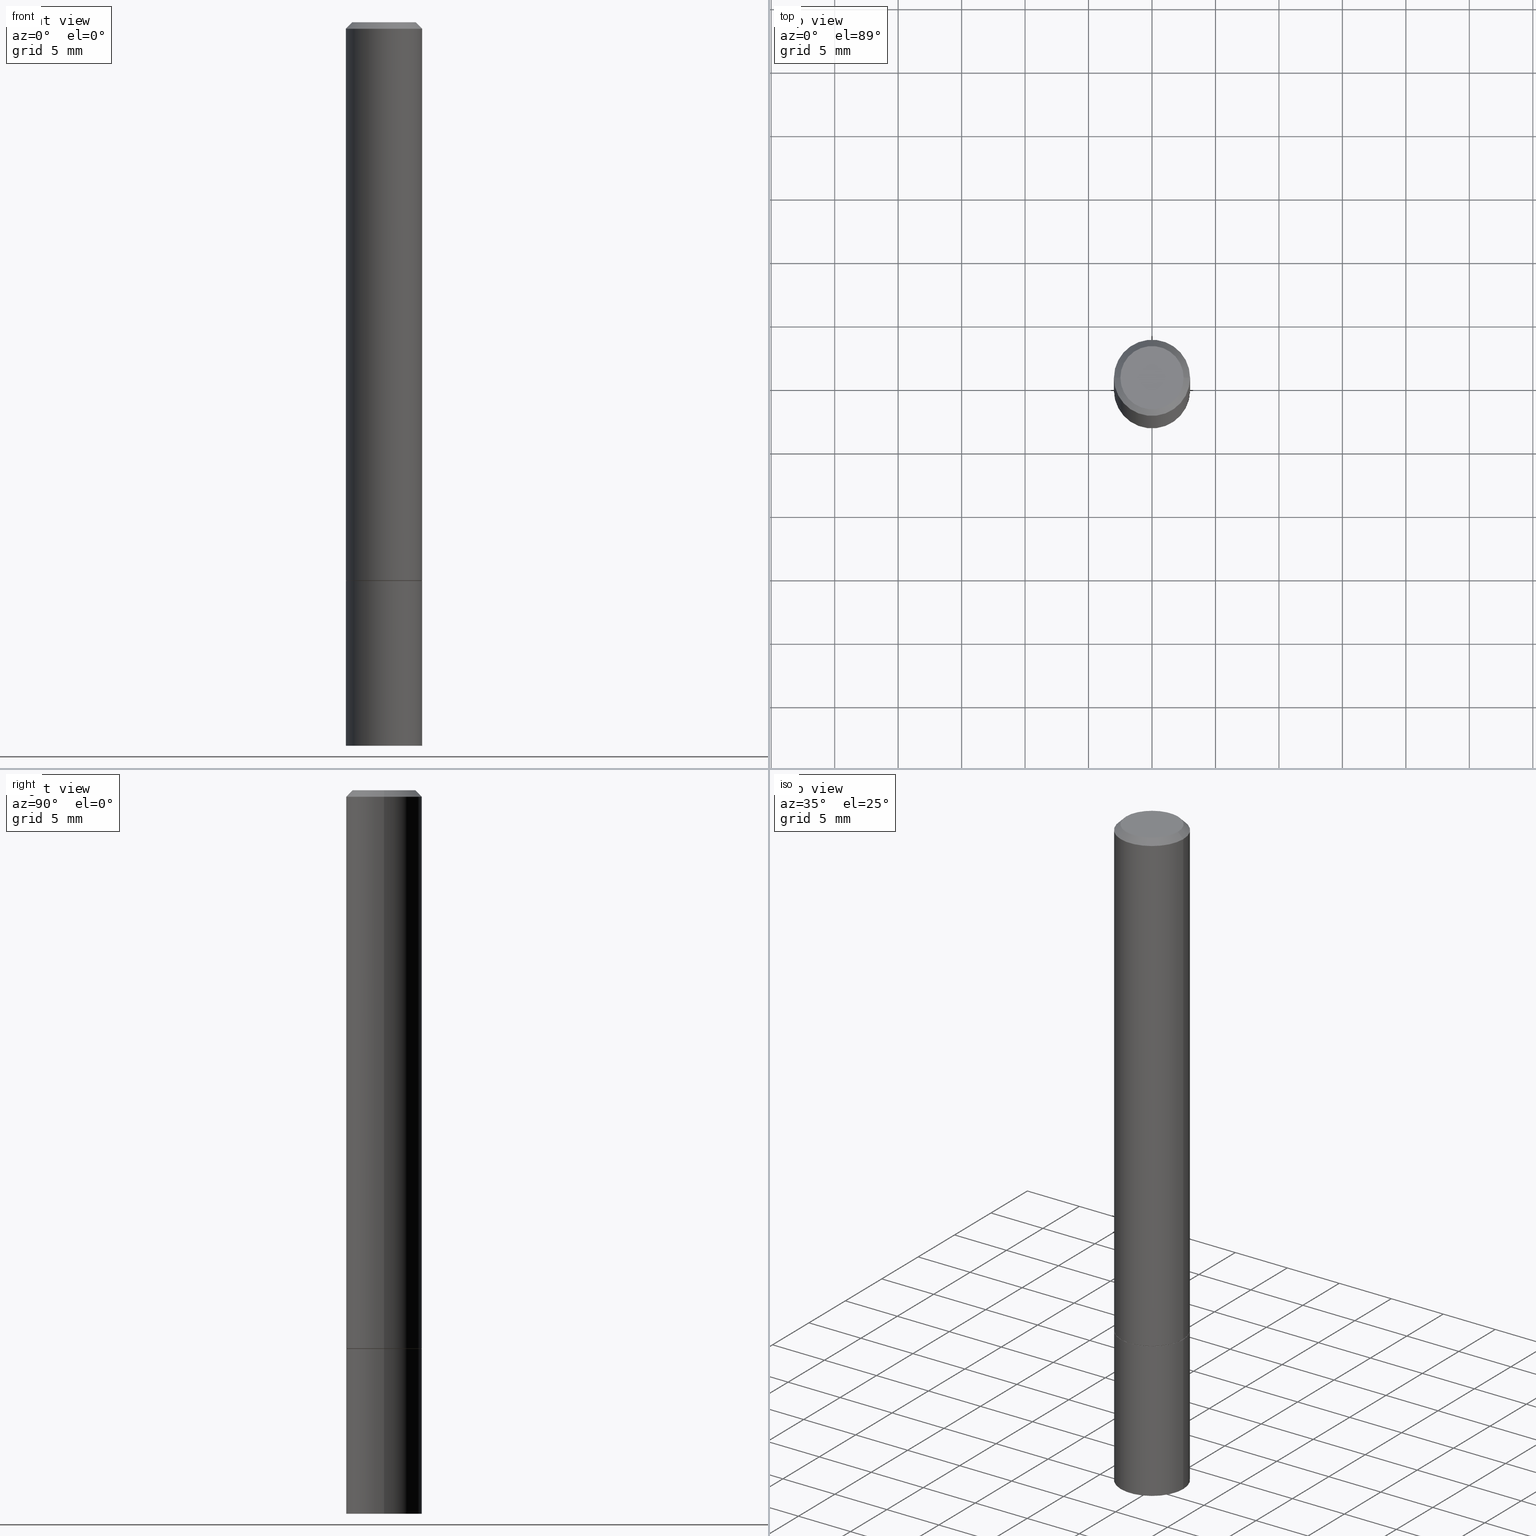
[diagram: canonical four-view strip — front | top / right | iso, engineering-drawing reading convention]
A machine part, canonical four-view strip (front | top / right | iso — engineering-drawing reading convention). The complete STEP part file that produces these views, byte-faithful:
ISO-10303-21;
HEADER;
FILE_DESCRIPTION (( 'STEP AP203' ),
    '1' );
FILE_NAME ('44701.STEP',
    '2024-02-28T07:26:41',
    ( '' ),
    ( '' ),
    'SwSTEP 2.0',
    'SolidWorks 2023',
    '' );
FILE_SCHEMA (( 'CONFIG_CONTROL_DESIGN' ));
ENDSEC;

DATA;
#1 = CARTESIAN_POINT ( 'NONE',  ( 4.890937612370292426E-31, -6.982962677686317493E-17, -0.02000000000000007674 ) ) ;
#2 = CYLINDRICAL_SURFACE ( 'NONE', #16, 0.1180999999999999273 ) ;
#3 = CARTESIAN_POINT ( 'NONE',  ( 0.1181000000000000383, -8.659921164732650602E-15, -2.244099999999999984 ) ) ;
#4 = ADVANCED_FACE ( 'NONE', ( #225 ), #279, .F. ) ;
#5 = AXIS2_PLACEMENT_3D ( 'NONE', #308, #343, #342 ) ;
#6 = APPROVAL_PERSON_ORGANIZATION ( #243, #285, #50 ) ;
#7 = DIRECTION ( 'NONE',  ( 1.000000000000000000, -6.982962677686270655E-15, 0.000000000000000000 ) ) ;
#8 =( NAMED_UNIT ( * ) SI_UNIT ( $, .STERADIAN. ) SOLID_ANGLE_UNIT ( ) );
#9 = CARTESIAN_POINT ( 'NONE',  ( 0.1180999999999999273, -8.246878922347475723E-16, 5.758764772214996937E-30 ) ) ;
#10 = CARTESIAN_POINT ( 'NONE',  ( 0.1171000000000000235, -6.865998052835044115E-15, -1.732299999999999951 ) ) ;
#11 = COORDINATED_UNIVERSAL_TIME_OFFSET ( 5, 0, .BEHIND. ) ;
#12 = EDGE_LOOP ( 'NONE', ( #78, #115 ) ) ;
#13 = EDGE_CURVE ( 'NONE', #346, #133, #340, .T. ) ;
#14 = DIRECTION ( 'NONE',  ( -2.445468806185136597E-29, 3.491481338843145583E-15, 1.000000000000000000 ) ) ;
#15 = PERSON_AND_ORGANIZATION_ROLE ( 'creator' ) ;
#16 = AXIS2_PLACEMENT_3D ( 'NONE', #260, #130, #252 ) ;
#17 = EDGE_LOOP ( 'NONE', ( #54, #81, #291, #108 ) ) ;
#18 = DIRECTION ( 'NONE',  ( 0.7071067811865232589, -2.468850131082003836E-15, 0.7071067811865715536 ) ) ;
#19 = ORIENTED_EDGE ( 'NONE', *, *, #189, .F. ) ;
#20 = PERSON_AND_ORGANIZATION_ROLE ( 'classification_officer' ) ;
#21 = DIRECTION ( 'NONE',  ( 0.7071067811865469066, -7.319954787623254468E-15, -0.7071067811865482389 ) ) ;
#22 = LOCAL_TIME ( 2, 26, 41.00000000000000000, #11 ) ;
#23 = CARTESIAN_POINT ( 'NONE',  ( 5.487876547960064752E-29, -7.835233272497902340E-15, -2.244099999999999984 ) ) ;
#24 = ORIENTED_EDGE ( 'NONE', *, *, #229, .T. ) ;
#25 = ORIENTED_EDGE ( 'NONE', *, *, #41, .T. ) ;
#26 = DIRECTION ( 'NONE',  ( 1.000000000000000000, -6.982962677686266711E-15, 0.000000000000000000 ) ) ;
#27 = ADVANCED_FACE ( 'NONE', ( #167 ), #45, .T. ) ;
#28 = AXIS2_PLACEMENT_3D ( 'NONE', #212, #216, #83 ) ;
#29 = EDGE_CURVE ( 'NONE', #293, #111, #241, .T. ) ;
#30 = CARTESIAN_POINT ( 'NONE',  ( 4.236285612954512392E-29, -6.048293123277981078E-15, -1.732299999999999951 ) ) ;
#31 = DIRECTION ( 'NONE',  ( -2.445468806185136597E-29, 3.491481338843145583E-15, 1.000000000000000000 ) ) ;
#32 = DIMENSIONAL_EXPONENTS ( 1.000000000000000000, 0.000000000000000000, 0.000000000000000000, 0.000000000000000000, 0.000000000000000000, 0.000000000000000000, 0.000000000000000000 ) ;
#33 = ORIENTED_EDGE ( 'NONE', *, *, #84, .F. ) ;
#34 = CC_DESIGN_PERSON_AND_ORGANIZATION_ASSIGNMENT ( #47, #74, ( #211 ) ) ;
#35 = ORIENTED_EDGE ( 'NONE', *, *, #113, .T. ) ;
#36 = APPROVAL_STATUS ( 'not_yet_approved' ) ;
#37 = ORIENTED_EDGE ( 'NONE', *, *, #249, .F. ) ;
#38 = CARTESIAN_POINT ( 'NONE',  ( 0.1181000000000000383, -8.246878922347483612E-16, 5.758764772215001842E-30 ) ) ;
#39 = LINE ( 'NONE', #10, #287 ) ;
#40 = DATE_TIME_ROLE ( 'creation_date' ) ;
#41 = EDGE_CURVE ( 'NONE', #174, #236, #200, .T. ) ;
#42 = ORIENTED_EDGE ( 'NONE', *, *, #223, .F. ) ;
#43 = DIRECTION ( 'NONE',  ( 2.438088387897960049E-29, -3.491481338843145188E-15, -1.000000000000000000 ) ) ;
#44 = PERSON_AND_ORGANIZATION ( #53, #298 ) ;
#45 = CONICAL_SURFACE ( 'NONE', #134, 0.1171000000000000235, 0.7853981633974141952 ) ;
#46 = DIRECTION ( 'NONE',  ( -2.445468806185136597E-29, 3.491481338843145583E-15, 1.000000000000000000 ) ) ;
#47 = PERSON_AND_ORGANIZATION ( #53, #298 ) ;
#48 = VERTEX_POINT ( 'NONE', #317 ) ;
#49 = DIRECTION ( 'NONE',  ( -2.445468806185136877E-29, 3.491481338843145188E-15, 1.000000000000000000 ) ) ;
#50 = APPROVAL_ROLE ( '' ) ;
#51 = AXIS2_PLACEMENT_3D ( 'NONE', #172, #43, #147 ) ;
#52 = DIRECTION ( 'NONE',  ( 1.000000000000000000, -6.982962677686266711E-15, 0.000000000000000000 ) ) ;
#53 = PERSON ( 'UNSPECIFIED', 'UNSPECIFIED', 'UNSPECIFIED', ('UNSPECIFIED'), ('UNSPECIFIED'), ('UNSPECIFIED') ) ;
#54 = ORIENTED_EDGE ( 'NONE', *, *, #150, .T. ) ;
#55 = EDGE_CURVE ( 'NONE', #346, #181, #207, .T. ) ;
#56 = DIRECTION ( 'NONE',  ( -2.445468806185136877E-29, 3.491481338843145188E-15, 1.000000000000000000 ) ) ;
#57 = CYLINDRICAL_SURFACE ( 'NONE', #122, 0.1181000000000000383 ) ;
#58 = AXIS2_PLACEMENT_3D ( 'NONE', #86, #195, #62 ) ;
#59 = EDGE_CURVE ( 'NONE', #347, #96, #137, .T. ) ;
#60 = CARTESIAN_POINT ( 'NONE',  ( 4.890937612370292426E-31, -6.982962677686317493E-17, -0.02000000000000007674 ) ) ;
#61 = DIRECTION ( 'NONE',  ( -1.000000000000000000, 6.982962677686266711E-15, 0.000000000000000000 ) ) ;
#62 = DIRECTION ( 'NONE',  ( 1.000000000000000000, -6.982962677686270655E-15, 0.000000000000000000 ) ) ;
#63 = DIRECTION ( 'NONE',  ( 1.000000000000000000, -6.982962677686266711E-15, 4.877161320636775200E-29 ) ) ;
#64 = AXIS2_PLACEMENT_3D ( 'NONE', #107, #269, #245 ) ;
#65 = CARTESIAN_POINT ( 'NONE',  ( 0.1180999999999998301, -8.800544403136798514E-16, -0.02000000000000007674 ) ) ;
#66 = ADVANCED_FACE ( 'NONE', ( #93 ), #276, .T. ) ;
#67 = ORIENTED_EDGE ( 'NONE', *, *, #59, .T. ) ;
#68 = AXIS2_PLACEMENT_3D ( 'NONE', #259, #296, #348 ) ;
#69 = AXIS2_PLACEMENT_3D ( 'NONE', #1, #267, #26 ) ;
#70 = CALENDAR_DATE ( 2024, 28, 2 ) ;
#71 = DIRECTION ( 'NONE',  ( -2.445468806185136597E-29, 3.491481338843145583E-15, 1.000000000000000000 ) ) ;
#72 =( CONVERSION_BASED_UNIT ( 'INCH', #282 ) LENGTH_UNIT ( ) NAMED_UNIT ( #32 ) );
#73 = VERTEX_POINT ( 'NONE', #235 ) ;
#74 = PERSON_AND_ORGANIZATION_ROLE ( 'creator' ) ;
#75 = ORIENTED_EDGE ( 'NONE', *, *, #180, .T. ) ;
#76 = CARTESIAN_POINT ( 'NONE',  ( 0.000000000000000000, 0.000000000000000000, 0.000000000000000000 ) ) ;
#77 = CARTESIAN_POINT ( 'NONE',  ( -0.1181000000000000383, -2.218164663425319332E-15, -1.731299999999999839 ) ) ;
#78 = ORIENTED_EDGE ( 'NONE', *, *, #150, .F. ) ;
#79 = COORDINATED_UNIVERSAL_TIME_OFFSET ( 5, 0, .BEHIND. ) ;
#80 = AXIS2_PLACEMENT_3D ( 'NONE', #191, #110, #222 ) ;
#81 = ORIENTED_EDGE ( 'NONE', *, *, #302, .T. ) ;
#82 = ORIENTED_EDGE ( 'NONE', *, *, #189, .T. ) ;
#83 = DIRECTION ( 'NONE',  ( 1.000000000000000000, -6.982962677686266711E-15, 4.876176775795935793E-29 ) ) ;
#84 = EDGE_CURVE ( 'NONE', #48, #181, #202, .T. ) ;
#85 = MANIFOLD_SOLID_BREP ( 'Body-Move/Copy2[2]', #224 ) ;
#86 = CARTESIAN_POINT ( 'NONE',  ( 5.487876547960064752E-29, -7.835233272497902340E-15, -2.244099999999999984 ) ) ;
#87 = CIRCLE ( 'NONE', #80, 0.1181000000000000383 ) ;
#88 = ADVANCED_FACE ( 'NONE', ( #292 ), #210, .T. ) ;
#89 = AXIS2_PLACEMENT_3D ( 'NONE', #307, #31, #63 ) ;
#90 = APPLICATION_CONTEXT ( 'configuration controlled 3d designs of mechanical parts and assemblies' ) ;
#91 = PERSON_AND_ORGANIZATION ( #53, #298 ) ;
#92 = DESIGN_CONTEXT ( 'detailed design', #360, 'design' ) ;
#93 = FACE_OUTER_BOUND ( 'NONE', #17, .T. ) ;
#94 = AXIS2_PLACEMENT_3D ( 'NONE', #23, #303, #131 ) ;
#95 = CALENDAR_DATE ( 2024, 28, 2 ) ;
#96 = VERTEX_POINT ( 'NONE', #295 ) ;
#97 = APPROVAL_STATUS ( 'not_yet_approved' ) ;
#98 = DIRECTION ( 'NONE',  ( -1.000000000000000000, 6.982962677686266711E-15, 0.000000000000000000 ) ) ;
#99 = APPROVAL ( #36, 'UNSPECIFIED' ) ;
#100 = AXIS2_PLACEMENT_3D ( 'NONE', #121, #71, #141 ) ;
#101 = EDGE_LOOP ( 'NONE', ( #82, #331 ) ) ;
#102 = CARTESIAN_POINT ( 'NONE',  ( 0.000000000000000000, 0.000000000000000000, 0.000000000000000000 ) ) ;
#103 = CARTESIAN_POINT ( 'NONE',  ( -0.1180999999999998301, 7.548582654578836825E-16, -0.02000000000000007674 ) ) ;
#104 = PLANE ( 'NONE',  #153 ) ;
#105 = APPROVAL_DATE_TIME ( #186, #285 ) ;
#106 = LOCAL_TIME ( 2, 26, 41.00000000000000000, #148 ) ;
#107 = CARTESIAN_POINT ( 'NONE',  ( 4.236285612954512392E-29, -6.048293123277981078E-15, -1.732299999999999951 ) ) ;
#108 = ORIENTED_EDGE ( 'NONE', *, *, #113, .F. ) ;
#109 = VECTOR ( 'NONE', #337, 39.37007874015748854 ) ;
#110 = DIRECTION ( 'NONE',  ( -2.445468806185136597E-29, 3.491481338843145583E-15, 1.000000000000000000 ) ) ;
#111 = VERTEX_POINT ( 'NONE', #116 ) ;
#112 =( LENGTH_UNIT ( ) NAMED_UNIT ( * ) SI_UNIT ( $, .METRE. ) );
#113 = EDGE_CURVE ( 'NONE', #96, #111, #39, .T. ) ;
#114 = APPROVAL_DATE_TIME ( #315, #99 ) ;
#115 = ORIENTED_EDGE ( 'NONE', *, *, #59, .F. ) ;
#116 = CARTESIAN_POINT ( 'NONE',  ( 0.1181000000000000383, -6.869489534173886334E-15, -1.731299999999999839 ) ) ;
#117 = CARTESIAN_POINT ( 'NONE',  ( -0.09809999999999984011, 7.199434520694526251E-16, -4.695363739110943904E-17 ) ) ;
#118 = DATE_AND_TIME ( #353, #22 ) ;
#119 = ORIENTED_EDGE ( 'NONE', *, *, #13, .T. ) ;
#120 = ADVANCED_BREP_SHAPE_REPRESENTATION ( '44701', ( #336, #85, #270 ), #351 ) ;
#121 = CARTESIAN_POINT ( 'NONE',  ( 4.236285612954512392E-29, -6.048293123277981078E-15, -1.732299999999999951 ) ) ;
#122 = AXIS2_PLACEMENT_3D ( 'NONE', #102, #332, #124 ) ;
#123 = DATE_AND_TIME ( #95, #127 ) ;
#124 = DIRECTION ( 'NONE',  ( 1.000000000000000000, -6.982962677686266711E-15, 4.876176775795935793E-29 ) ) ;
#125 = AXIS2_PLACEMENT_3D ( 'NONE', #264, #355, #98 ) ;
#126 = CALENDAR_DATE ( 2024, 28, 2 ) ;
#127 = LOCAL_TIME ( 2, 26, 41.00000000000000000, #290 ) ;
#128 = ORIENTED_EDGE ( 'NONE', *, *, #249, .T. ) ;
#129 = FACE_OUTER_BOUND ( 'NONE', #274, .T. ) ;
#130 = DIRECTION ( 'NONE',  ( -2.445468806185136597E-29, 3.491481338843145583E-15, 1.000000000000000000 ) ) ;
#131 = DIRECTION ( 'NONE',  ( 1.000000000000000000, -6.982962677686270655E-15, 0.000000000000000000 ) ) ;
#132 = LINE ( 'NONE', #248, #312 ) ;
#133 = VERTEX_POINT ( 'NONE', #327 ) ;
#134 = AXIS2_PLACEMENT_3D ( 'NONE', #30, #251, #7 ) ;
#135 = ORIENTED_EDGE ( 'NONE', *, *, #55, .F. ) ;
#136 = CC_DESIGN_DATE_AND_TIME_ASSIGNMENT ( #155, #263, ( #152 ) ) ;
#137 = CIRCLE ( 'NONE', #68, 0.1171000000000000235 ) ;
#138 = ORIENTED_EDGE ( 'NONE', *, *, #366, .F. ) ;
#139 = ADVANCED_FACE ( 'NONE', ( #238 ), #209, .F. ) ;
#140 = CC_DESIGN_APPROVAL ( #163, ( #211 ) ) ;
#141 = DIRECTION ( 'NONE',  ( 1.000000000000000000, -6.982962677686270655E-15, 0.000000000000000000 ) ) ;
#142 = MECHANICAL_CONTEXT ( 'NONE', #90, 'mechanical' ) ;
#143 = ORIENTED_EDGE ( 'NONE', *, *, #366, .T. ) ;
#144 = DIRECTION ( 'NONE',  ( -2.445468806185136877E-29, 3.491481338843145188E-15, 1.000000000000000000 ) ) ;
#145 = APPROVAL_ROLE ( '' ) ;
#146 = CARTESIAN_POINT ( 'NONE',  ( -0.1180999999999998301, 7.548582654578836825E-16, -0.02000000000000007674 ) ) ;
#147 = DIRECTION ( 'NONE',  ( -1.000000000000000000, 6.982962677686265922E-15, -4.876176775795935793E-29 ) ) ;
#148 = COORDINATED_UNIVERSAL_TIME_OFFSET ( 5, 0, .BEHIND. ) ;
#149 = DIRECTION ( 'NONE',  ( 1.000000000000000000, -6.982962677686270655E-15, 0.000000000000000000 ) ) ;
#150 = EDGE_CURVE ( 'NONE', #96, #347, #334, .T. ) ;
#151 = AXIS2_PLACEMENT_3D ( 'NONE', #354, #46, #154 ) ;
#152 = SECURITY_CLASSIFICATION ( '', '', #361 ) ;
#153 = AXIS2_PLACEMENT_3D ( 'NONE', #190, #161, #273 ) ;
#154 = DIRECTION ( 'NONE',  ( 1.000000000000000000, -6.982962677686262766E-15, 0.000000000000000000 ) ) ;
#155 = DATE_AND_TIME ( #126, #335 ) ;
#156 = ORIENTED_EDGE ( 'NONE', *, *, #169, .T. ) ;
#157 = CALENDAR_DATE ( 2024, 28, 2 ) ;
#158 = ORIENTED_EDGE ( 'NONE', *, *, #55, .T. ) ;
#159 = LINE ( 'NONE', #218, #109 ) ;
#160 = CIRCLE ( 'NONE', #89, 0.09809999999999984011 ) ;
#161 = DIRECTION ( 'NONE',  ( 2.438088387897960049E-29, -3.491481338843145188E-15, -1.000000000000000000 ) ) ;
#162 = EDGE_LOOP ( 'NONE', ( #119, #168, #19, #135 ) ) ;
#163 = APPROVAL ( #97, 'UNSPECIFIED' ) ;
#164 = VECTOR ( 'NONE', #175, 39.37007874015748143 ) ;
#165 = VECTOR ( 'NONE', #49, 39.37007874015748143 ) ;
#166 = ADVANCED_FACE ( 'NONE', ( #256 ), #233, .T. ) ;
#167 = FACE_OUTER_BOUND ( 'NONE', #266, .T. ) ;
#168 = ORIENTED_EDGE ( 'NONE', *, *, #223, .T. ) ;
#169 = EDGE_CURVE ( 'NONE', #174, #73, #250, .T. ) ;
#170 = CARTESIAN_POINT ( 'NONE',  ( 4.236285612954512392E-29, -6.048293123277981078E-15, -1.732299999999999951 ) ) ;
#171 = PERSON_AND_ORGANIZATION ( #53, #298 ) ;
#172 = CARTESIAN_POINT ( 'NONE',  ( 8.246878922348030884E-16, 0.1180999999999921973, -2.244100000000000428 ) ) ;
#173 = ADVANCED_FACE ( 'NONE', ( #247 ), #2, .T. ) ;
#174 = VERTEX_POINT ( 'NONE', #117 ) ;
#175 = DIRECTION ( 'NONE',  ( -0.7071067811865469066, 2.468850131082249961E-15, -0.7071067811865482389 ) ) ;
#176 = EDGE_LOOP ( 'NONE', ( #227, #322, #25, #75 ) ) ;
#177 = VECTOR ( 'NONE', #144, 39.37007874015748143 ) ;
#178 = VECTOR ( 'NONE', #21, 39.37007874015748143 ) ;
#179 = DIRECTION ( 'NONE',  ( 1.000000000000000000, -6.982962677686266711E-15, 4.876176775795935793E-29 ) ) ;
#180 = EDGE_CURVE ( 'NONE', #236, #350, #185, .T. ) ;
#181 = VERTEX_POINT ( 'NONE', #275 ) ;
#182 = DIRECTION ( 'NONE',  ( -2.445468806185136597E-29, 3.491481338843145583E-15, 1.000000000000000000 ) ) ;
#183 = CARTESIAN_POINT ( 'NONE',  ( -0.1181000000000000383, 8.391509709326785915E-16, -5.809262341591045886E-30 ) ) ;
#184 = CYLINDRICAL_SURFACE ( 'NONE', #28, 0.1181000000000000383 ) ;
#185 = CIRCLE ( 'NONE', #197, 0.1180999999999998301 ) ;
#186 = DATE_AND_TIME ( #157, #344 ) ;
#187 = CONICAL_SURFACE ( 'NONE', #277, 0.1180999999999998301, 0.7853981633974473908 ) ;
#188 = ORIENTED_EDGE ( 'NONE', *, *, #310, .F. ) ;
#189 = EDGE_CURVE ( 'NONE', #181, #48, #217, .T. ) ;
#190 = CARTESIAN_POINT ( 'NONE',  ( 8.246878922347905653E-16, 0.1180999999999939876, -1.732300000000000617 ) ) ;
#191 = CARTESIAN_POINT ( 'NONE',  ( 4.233840144148326789E-29, -6.044801641939137282E-15, -1.731299999999999839 ) ) ;
#192 = AXIS2_PLACEMENT_3D ( 'NONE', #261, #14, #323 ) ;
#193 = DIRECTION ( 'NONE',  ( 2.445468806185136597E-29, -3.491481338843145583E-15, -1.000000000000000000 ) ) ;
#194 = CC_DESIGN_PERSON_AND_ORGANIZATION_ASSIGNMENT ( #299, #20, ( #152 ) ) ;
#195 = DIRECTION ( 'NONE',  ( -2.445468806185136597E-29, 3.491481338843145583E-15, 1.000000000000000000 ) ) ;
#196 = CARTESIAN_POINT ( 'NONE',  ( 4.233840144148326789E-29, -6.044801641939137282E-15, -1.731299999999999839 ) ) ;
#197 = AXIS2_PLACEMENT_3D ( 'NONE', #60, #314, #52 ) ;
#198 = APPROVAL_ROLE ( '' ) ;
#199 = EDGE_LOOP ( 'NONE', ( #156, #201 ) ) ;
#200 = LINE ( 'NONE', #146, #164 ) ;
#201 = ORIENTED_EDGE ( 'NONE', *, *, #310, .T. ) ;
#202 = CIRCLE ( 'NONE', #151, 0.1181000000000000383 ) ;
#203 = AXIS2_PLACEMENT_3D ( 'NONE', #76, #182, #179 ) ;
#204 = DIRECTION ( 'NONE',  ( -2.438088387897960049E-29, 3.491481338843145188E-15, 1.000000000000000000 ) ) ;
#205 =( NAMED_UNIT ( * ) PLANE_ANGLE_UNIT ( ) SI_UNIT ( $, .RADIAN. ) );
#206 = DIRECTION ( 'NONE',  ( 1.000000000000000000, 0.000000000000000000, 0.000000000000000000 ) ) ;
#207 = LINE ( 'NONE', #38, #177 ) ;
#208 = CARTESIAN_POINT ( 'NONE',  ( 0.1180999999999998301, -8.800544403136798514E-16, -0.02000000000000007674 ) ) ;
#209 = PLANE ( 'NONE',  #254 ) ;
#210 = CONICAL_SURFACE ( 'NONE', #125, 0.1180999999999998301, 0.7853981633974473908 ) ;
#211 = PRODUCT_DEFINITION_FORMATION_WITH_SPECIFIED_SOURCE ( 'ANY', '', #237, .NOT_KNOWN. ) ;
#212 = CARTESIAN_POINT ( 'NONE',  ( 0.000000000000000000, 0.000000000000000000, 0.000000000000000000 ) ) ;
#213 = PERSON_AND_ORGANIZATION_ROLE ( 'design_supplier' ) ;
#214 = ORIENTED_EDGE ( 'NONE', *, *, #29, .T. ) ;
#215 = APPROVAL_STATUS ( 'not_yet_approved' ) ;
#216 = DIRECTION ( 'NONE',  ( -2.445468806185136597E-29, 3.491481338843145583E-15, 1.000000000000000000 ) ) ;
#217 = CIRCLE ( 'NONE', #64, 0.1181000000000000383 ) ;
#218 = CARTESIAN_POINT ( 'NONE',  ( -0.1171000000000000235, -5.216247579702903100E-15, -1.732299999999999951 ) ) ;
#219 = ADVANCED_FACE ( 'NONE', ( #363 ), #184, .T. ) ;
#220 = CARTESIAN_POINT ( 'NONE',  ( -0.1171000000000000235, -5.210949125354681487E-15, -1.732299999999999951 ) ) ;
#221 = CIRCLE ( 'NONE', #94, 0.1181000000000000383 ) ;
#222 = DIRECTION ( 'NONE',  ( 1.000000000000000000, -6.982962677686270655E-15, 0.000000000000000000 ) ) ;
#223 = EDGE_CURVE ( 'NONE', #133, #48, #329, .T. ) ;
#224 = CLOSED_SHELL ( 'NONE', ( #66, #173, #330, #88, #297, #27, #139, #4 ) ) ;
#225 = FACE_OUTER_BOUND ( 'NONE', #199, .T. ) ;
#226 = PERSON_AND_ORGANIZATION_ROLE ( 'design_owner' ) ;
#227 = ORIENTED_EDGE ( 'NONE', *, *, #258, .F. ) ;
#228 = LINE ( 'NONE', #9, #304 ) ;
#229 = EDGE_CURVE ( 'NONE', #133, #346, #221, .T. ) ;
#230 = EDGE_LOOP ( 'NONE', ( #42, #24, #158, #33 ) ) ;
#231 = AXIS2_PLACEMENT_3D ( 'NONE', #196, #356, #262 ) ;
#232 = APPROVAL_PERSON_ORGANIZATION ( #91, #99, #198 ) ;
#233 = PLANE ( 'NONE',  #51 ) ;
#234 = PERSON_AND_ORGANIZATION ( #53, #298 ) ;
#235 = CARTESIAN_POINT ( 'NONE',  ( 0.09809999999999984011, -7.765346469475330681E-16, -4.695363739109941188E-17 ) ) ;
#236 = VERTEX_POINT ( 'NONE', #103 ) ;
#237 = PRODUCT ( '44701', '44701', '', ( #142 ) ) ;
#238 = FACE_OUTER_BOUND ( 'NONE', #12, .T. ) ;
#239 = PERSON_AND_ORGANIZATION ( #53, #298 ) ;
#240 = ORIENTED_EDGE ( 'NONE', *, *, #258, .T. ) ;
#241 = CIRCLE ( 'NONE', #231, 0.1181000000000000383 ) ;
#242 = CIRCLE ( 'NONE', #69, 0.1180999999999998301 ) ;
#243 = PERSON_AND_ORGANIZATION ( #53, #298 ) ;
#244 = EDGE_LOOP ( 'NONE', ( #255, #128, #328, #138 ) ) ;
#245 = DIRECTION ( 'NONE',  ( 1.000000000000000000, -6.982962677686262766E-15, 0.000000000000000000 ) ) ;
#246 = ADVANCED_FACE ( 'NONE', ( #306 ), #104, .F. ) ;
#247 = FACE_OUTER_BOUND ( 'NONE', #244, .T. ) ;
#248 = CARTESIAN_POINT ( 'NONE',  ( -0.1180999999999999273, 8.391509709326778027E-16, -5.809262341591040281E-30 ) ) ;
#249 = EDGE_CURVE ( 'NONE', #293, #236, #132, .T. ) ;
#250 = CIRCLE ( 'NONE', #192, 0.09809999999999984011 ) ;
#251 = DIRECTION ( 'NONE',  ( -2.445468806185136597E-29, 3.491481338843145583E-15, 1.000000000000000000 ) ) ;
#252 = DIRECTION ( 'NONE',  ( 1.000000000000000000, -6.982962677686266711E-15, 4.876176775795935793E-29 ) ) ;
#253 = EDGE_CURVE ( 'NONE', #350, #236, #242, .T. ) ;
#254 = AXIS2_PLACEMENT_3D ( 'NONE', #170, #204, #320 ) ;
#255 = ORIENTED_EDGE ( 'NONE', *, *, #324, .T. ) ;
#256 = FACE_OUTER_BOUND ( 'NONE', #357, .T. ) ;
#257 = DIRECTION ( 'NONE',  ( 0.000000000000000000, 0.000000000000000000, 1.000000000000000000 ) ) ;
#258 = EDGE_CURVE ( 'NONE', #73, #350, #268, .T. ) ;
#259 = CARTESIAN_POINT ( 'NONE',  ( 4.236285612954512392E-29, -6.048293123277981078E-15, -1.732299999999999951 ) ) ;
#260 = CARTESIAN_POINT ( 'NONE',  ( 0.000000000000000000, 0.000000000000000000, 0.000000000000000000 ) ) ;
#261 = CARTESIAN_POINT ( 'NONE',  ( 1.148236555768741665E-45, -1.639377487418492057E-31, -4.695363739110452099E-17 ) ) ;
#262 = DIRECTION ( 'NONE',  ( 1.000000000000000000, -6.982962677686270655E-15, 0.000000000000000000 ) ) ;
#263 = DATE_TIME_ROLE ( 'classification_date' ) ;
#264 = CARTESIAN_POINT ( 'NONE',  ( 4.890937612370292426E-31, -6.982962677686317493E-17, -0.02000000000000007674 ) ) ;
#265 = CC_DESIGN_PERSON_AND_ORGANIZATION_ASSIGNMENT ( #239, #213, ( #211 ) ) ;
#266 = EDGE_LOOP ( 'NONE', ( #300, #67, #35, #316 ) ) ;
#267 = DIRECTION ( 'NONE',  ( -2.445468806185136597E-29, 3.491481338843145583E-15, 1.000000000000000000 ) ) ;
#268 = LINE ( 'NONE', #208, #178 ) ;
#269 = DIRECTION ( 'NONE',  ( -2.445468806185136597E-29, 3.491481338843145583E-15, 1.000000000000000000 ) ) ;
#270 = AXIS2_PLACEMENT_3D ( 'NONE', #321, #257, #206 ) ;
#271 = EDGE_LOOP ( 'NONE', ( #188, #240, #318, #284 ) ) ;
#272 = ADVANCED_FACE ( 'NONE', ( #364 ), #57, .T. ) ;
#273 = DIRECTION ( 'NONE',  ( -1.000000000000000000, 6.982962677686265922E-15, -4.876176775795935793E-29 ) ) ;
#274 = EDGE_LOOP ( 'NONE', ( #37, #214, #143, #305 ) ) ;
#275 = CARTESIAN_POINT ( 'NONE',  ( 0.1181000000000000383, -6.872981015512729341E-15, -1.732299999999999951 ) ) ;
#276 = CONICAL_SURFACE ( 'NONE', #359, 0.1171000000000000235, 0.7853981633974141952 ) ;
#277 = AXIS2_PLACEMENT_3D ( 'NONE', #309, #193, #61 ) ;
#278 = PRODUCT_DEFINITION_SHAPE ( 'NONE', 'NONE',  #358 ) ;
#279 = PLANE ( 'NONE',  #5 ) ;
#280 = APPROVAL_PERSON_ORGANIZATION ( #234, #163, #145 ) ;
#281 = CC_DESIGN_DATE_AND_TIME_ASSIGNMENT ( #123, #40, ( #358 ) ) ;
#282 = LENGTH_MEASURE_WITH_UNIT ( LENGTH_MEASURE( 0.02539999999999999897 ), #112 );
#283 = APPLICATION_PROTOCOL_DEFINITION ( 'international standard', 'config_control_design', 1994, #90 ) ;
#284 = ORIENTED_EDGE ( 'NONE', *, *, #41, .F. ) ;
#285 = APPROVAL ( #215, 'UNSPECIFIED' ) ;
#286 = DIRECTION ( 'NONE',  ( -2.445468806185136877E-29, 3.491481338843145188E-15, 1.000000000000000000 ) ) ;
#287 = VECTOR ( 'NONE', #18, 39.37007874015748854 ) ;
#288 = ORIENTED_EDGE ( 'NONE', *, *, #229, .F. ) ;
#289 = CC_DESIGN_APPROVAL ( #99, ( #358 ) ) ;
#290 = COORDINATED_UNIVERSAL_TIME_OFFSET ( 5, 0, .BEHIND. ) ;
#291 = ORIENTED_EDGE ( 'NONE', *, *, #324, .F. ) ;
#292 = FACE_OUTER_BOUND ( 'NONE', #176, .T. ) ;
#293 = VERTEX_POINT ( 'NONE', #77 ) ;
#294 = DIRECTION ( 'NONE',  ( -2.445468806185136597E-29, 3.491481338843145583E-15, 1.000000000000000000 ) ) ;
#295 = CARTESIAN_POINT ( 'NONE',  ( 0.1171000000000000235, -6.865998052835044115E-15, -1.732299999999999951 ) ) ;
#296 = DIRECTION ( 'NONE',  ( -2.445468806185136597E-29, 3.491481338843145583E-15, 1.000000000000000000 ) ) ;
#297 = ADVANCED_FACE ( 'NONE', ( #129 ), #326, .T. ) ;
#298 = ORGANIZATION ( 'UNSPECIFIED', 'UNSPECIFIED', '' ) ;
#299 = PERSON_AND_ORGANIZATION ( #53, #298 ) ;
#300 = ORIENTED_EDGE ( 'NONE', *, *, #302, .F. ) ;
#301 = ORIENTED_EDGE ( 'NONE', *, *, #13, .F. ) ;
#302 = EDGE_CURVE ( 'NONE', #347, #293, #159, .T. ) ;
#303 = DIRECTION ( 'NONE',  ( -2.445468806185136597E-29, 3.491481338843145583E-15, 1.000000000000000000 ) ) ;
#304 = VECTOR ( 'NONE', #286, 39.37007874015748143 ) ;
#305 = ORIENTED_EDGE ( 'NONE', *, *, #180, .F. ) ;
#306 = FACE_OUTER_BOUND ( 'NONE', #101, .T. ) ;
#307 = CARTESIAN_POINT ( 'NONE',  ( 1.148236555768741665E-45, -1.639377487418492057E-31, -4.695363739110452099E-17 ) ) ;
#308 = CARTESIAN_POINT ( 'NONE',  ( 6.850286386810215676E-16, 0.09809999999999984011, -3.659911380360642646E-16 ) ) ;
#309 = CARTESIAN_POINT ( 'NONE',  ( 4.890937612370292426E-31, -6.982962677686317493E-17, -0.02000000000000007674 ) ) ;
#310 = EDGE_CURVE ( 'NONE', #73, #174, #160, .T. ) ;
#311 = CLOSED_SHELL ( 'NONE', ( #272, #166, #246, #219 ) ) ;
#312 = VECTOR ( 'NONE', #56, 39.37007874015748143 ) ;
#313 = PRODUCT_RELATED_PRODUCT_CATEGORY ( 'detail', '', ( #237 ) ) ;
#314 = DIRECTION ( 'NONE',  ( -2.445468806185136597E-29, 3.491481338843145583E-15, 1.000000000000000000 ) ) ;
#315 = DATE_AND_TIME ( #70, #106 ) ;
#316 = ORIENTED_EDGE ( 'NONE', *, *, #29, .F. ) ;
#317 = CARTESIAN_POINT ( 'NONE',  ( -0.1181000000000000383, -6.102612226955263117E-15, -1.732299999999999951 ) ) ;
#318 = ORIENTED_EDGE ( 'NONE', *, *, #253, .T. ) ;
#319 = CARTESIAN_POINT ( 'NONE',  ( 4.236285612954512392E-29, -6.048293123277981078E-15, -1.732299999999999951 ) ) ;
#320 = DIRECTION ( 'NONE',  ( 1.000000000000000000, -6.982962677686265922E-15, 4.876176775795935793E-29 ) ) ;
#321 = CARTESIAN_POINT ( 'NONE',  ( 0.000000000000000000, 0.000000000000000000, 0.000000000000000000 ) ) ;
#322 = ORIENTED_EDGE ( 'NONE', *, *, #169, .F. ) ;
#323 = DIRECTION ( 'NONE',  ( 1.000000000000000000, -6.982962677686266711E-15, 4.877161320636775200E-29 ) ) ;
#324 = EDGE_CURVE ( 'NONE', #111, #293, #87, .T. ) ;
#325 = UNCERTAINTY_MEASURE_WITH_UNIT (LENGTH_MEASURE( 1.000000000000000082E-05 ), #72, 'distance_accuracy_value', 'NONE');
#326 = CYLINDRICAL_SURFACE ( 'NONE', #203, 0.1180999999999999273 ) ;
#327 = CARTESIAN_POINT ( 'NONE',  ( -0.1181000000000000383, -6.102612226955263117E-15, -2.244099999999999984 ) ) ;
#328 = ORIENTED_EDGE ( 'NONE', *, *, #253, .F. ) ;
#329 = LINE ( 'NONE', #183, #165 ) ;
#330 = ADVANCED_FACE ( 'NONE', ( #339 ), #187, .T. ) ;
#331 = ORIENTED_EDGE ( 'NONE', *, *, #84, .T. ) ;
#332 = DIRECTION ( 'NONE',  ( -2.445468806185136597E-29, 3.491481338843145583E-15, 1.000000000000000000 ) ) ;
#333 = COORDINATED_UNIVERSAL_TIME_OFFSET ( 5, 0, .BEHIND. ) ;
#334 = CIRCLE ( 'NONE', #100, 0.1171000000000000235 ) ;
#335 = LOCAL_TIME ( 2, 26, 41.00000000000000000, #79 ) ;
#336 = MANIFOLD_SOLID_BREP ( 'Body-Move/Copy2[1]', #311 ) ;
#337 = DIRECTION ( 'NONE',  ( -0.7071067811865232589, 7.493145998870265808E-15, 0.7071067811865715536 ) ) ;
#338 = CC_DESIGN_PERSON_AND_ORGANIZATION_ASSIGNMENT ( #44, #226, ( #237 ) ) ;
#339 = FACE_OUTER_BOUND ( 'NONE', #271, .T. ) ;
#340 = CIRCLE ( 'NONE', #58, 0.1181000000000000383 ) ;
#341 = CC_DESIGN_SECURITY_CLASSIFICATION ( #152, ( #211 ) ) ;
#342 = DIRECTION ( 'NONE',  ( -1.000000000000000000, 6.982962677686265922E-15, -4.876176775795935793E-29 ) ) ;
#343 = DIRECTION ( 'NONE',  ( 2.438088387897960049E-29, -3.491481338843145188E-15, -1.000000000000000000 ) ) ;
#344 = LOCAL_TIME ( 2, 26, 41.00000000000000000, #333 ) ;
#345 = APPLICATION_PROTOCOL_DEFINITION ( 'international standard', 'config_control_design', 1994, #360 ) ;
#346 = VERTEX_POINT ( 'NONE', #3 ) ;
#347 = VERTEX_POINT ( 'NONE', #220 ) ;
#348 = DIRECTION ( 'NONE',  ( 1.000000000000000000, -6.982962677686270655E-15, 0.000000000000000000 ) ) ;
#349 = APPROVAL_DATE_TIME ( #118, #163 ) ;
#350 = VERTEX_POINT ( 'NONE', #65 ) ;
#351 =( GEOMETRIC_REPRESENTATION_CONTEXT ( 3 ) GLOBAL_UNCERTAINTY_ASSIGNED_CONTEXT ( ( #325 ) ) GLOBAL_UNIT_ASSIGNED_CONTEXT ( ( #72, #205, #8 ) ) REPRESENTATION_CONTEXT ( 'NONE', 'WORKASPACE' ) );
#352 = CC_DESIGN_PERSON_AND_ORGANIZATION_ASSIGNMENT ( #171, #15, ( #358 ) ) ;
#353 = CALENDAR_DATE ( 2024, 28, 2 ) ;
#354 = CARTESIAN_POINT ( 'NONE',  ( 4.236285612954512392E-29, -6.048293123277981078E-15, -1.732299999999999951 ) ) ;
#355 = DIRECTION ( 'NONE',  ( 2.445468806185136597E-29, -3.491481338843145583E-15, -1.000000000000000000 ) ) ;
#356 = DIRECTION ( 'NONE',  ( -2.445468806185136597E-29, 3.491481338843145583E-15, 1.000000000000000000 ) ) ;
#357 = EDGE_LOOP ( 'NONE', ( #301, #288 ) ) ;
#358 = PRODUCT_DEFINITION ( 'UNKNOWN', '', #211, #92 ) ;
#359 = AXIS2_PLACEMENT_3D ( 'NONE', #319, #294, #149 ) ;
#360 = APPLICATION_CONTEXT ( 'configuration controlled 3d designs of mechanical parts and assemblies' ) ;
#361 = SECURITY_CLASSIFICATION_LEVEL ( 'unclassified' ) ;
#362 = SHAPE_DEFINITION_REPRESENTATION ( #278, #120 ) ;
#363 = FACE_OUTER_BOUND ( 'NONE', #230, .T. ) ;
#364 = FACE_OUTER_BOUND ( 'NONE', #162, .T. ) ;
#365 = CC_DESIGN_APPROVAL ( #285, ( #152 ) ) ;
#366 = EDGE_CURVE ( 'NONE', #111, #350, #228, .T. ) ;
ENDSEC;
END-ISO-10303-21;
